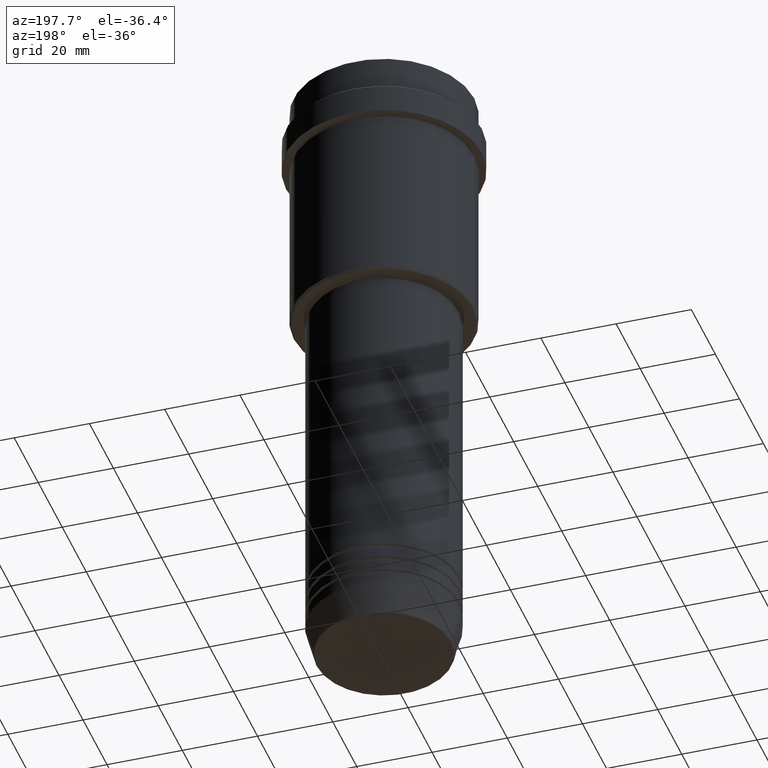
[diagram: clean part render]
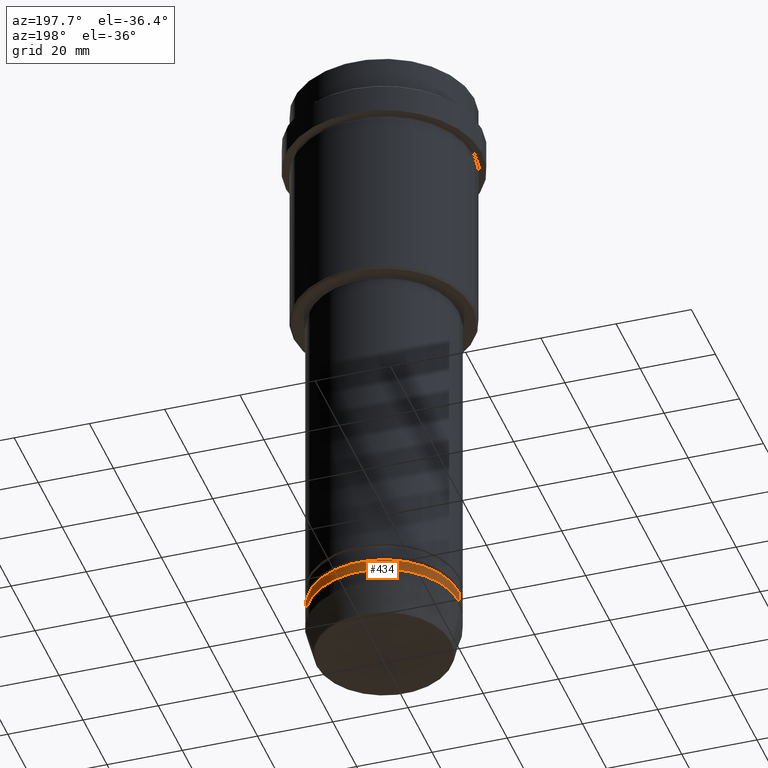
[diagram: same view with one face highlighted and labeled with its STEP entity id]
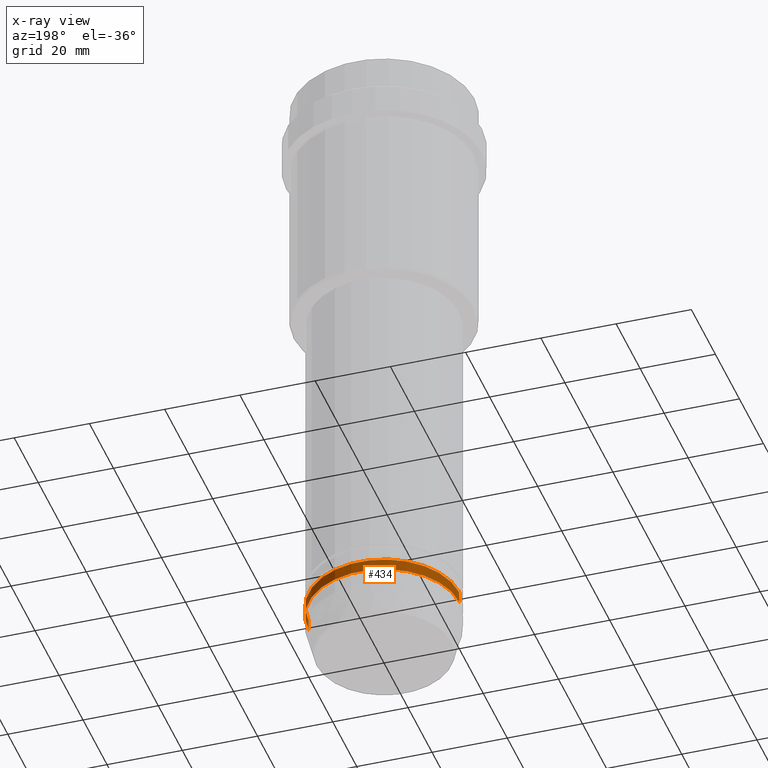
[diagram: x-ray of the same camera — body ghosted, the highlighted face saturated]
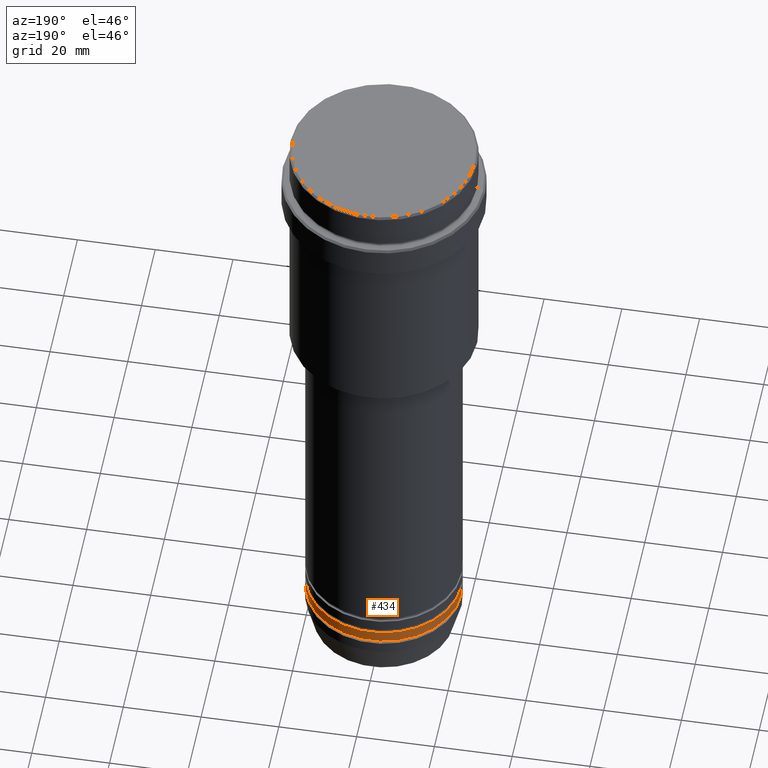
[diagram: same view with one face highlighted and labeled with its STEP entity id]
A machine part, auxiliary view. The second image highlights one B-rep face of the part: STEP entity #434.
The next image is the same camera in x-ray: the body ghosted, the highlighted face saturated — about 0% of this face is hidden behind the body in this view.
A second angle (auxiliary view) of the same face is appended — the face is thin or edge-on in the first view.
In plain terms, the highlighted cylindrical surface (partial cylindrical patch) has radius 20 mm, axis along (-0, -0, 1).
Its self-contained STEP definition (entity closure, byte-faithful):
#36 = CARTESIAN_POINT ( 'NONE',  ( 20.00000000000000000, 0.000000000000000000, -154.9999999999998863 ) ) ;
#71 = DIRECTION ( 'NONE',  ( -0.000000000000000000, -0.000000000000000000, 1.000000000000000000 ) ) ;
#169 = DIRECTION ( 'NONE',  ( 1.000000000000000000, 0.000000000000000000, 0.000000000000000000 ) ) ;
#211 = CARTESIAN_POINT ( 'NONE',  ( 20.00000000000000000, 0.000000000000000000, -157.9999999999998863 ) ) ;
#252 = CARTESIAN_POINT ( 'NONE',  ( 0.000000000000000000, 0.000000000000000000, -157.9999999999998863 ) ) ;
#375 = VERTEX_POINT ( 'NONE', #36 ) ;
#402 = EDGE_LOOP ( 'NONE', ( #940, #529, #1068, #763 ) ) ;
#434 = ADVANCED_FACE ( 'NONE', ( #1163 ), #599, .T. ) ;
#441 = CARTESIAN_POINT ( 'NONE',  ( -20.00000000000000000, 2.449293598294706513E-15, -154.9999999999998863 ) ) ;
#529 = ORIENTED_EDGE ( 'NONE', *, *, #584, .T. ) ;
#584 = EDGE_CURVE ( 'NONE', #696, #814, #1318, .T. ) ;
#591 = DIRECTION ( 'NONE',  ( -0.000000000000000000, -0.000000000000000000, 1.000000000000000000 ) ) ;
#593 = CIRCLE ( 'NONE', #850, 20.00000000000000000 ) ;
#599 = CYLINDRICAL_SURFACE ( 'NONE', #683, 20.00000000000000000 ) ;
#636 = AXIS2_PLACEMENT_3D ( 'NONE', #252, #71, #169 ) ;
#683 = AXIS2_PLACEMENT_3D ( 'NONE', #823, #591, #1259 ) ;
#696 = VERTEX_POINT ( 'NONE', #1405 ) ;
#746 = CARTESIAN_POINT ( 'NONE',  ( 0.000000000000000000, 0.000000000000000000, -154.9999999999998863 ) ) ;
#763 = ORIENTED_EDGE ( 'NONE', *, *, #1379, .F. ) ;
#814 = VERTEX_POINT ( 'NONE', #441 ) ;
#823 = CARTESIAN_POINT ( 'NONE',  ( 0.000000000000000000, 0.000000000000000000, 0.000000000000000000 ) ) ;
#850 = AXIS2_PLACEMENT_3D ( 'NONE', #746, #976, #1300 ) ;
#851 = DIRECTION ( 'NONE',  ( -0.000000000000000000, -0.000000000000000000, 1.000000000000000000 ) ) ;
#940 = ORIENTED_EDGE ( 'NONE', *, *, #1183, .T. ) ;
#976 = DIRECTION ( 'NONE',  ( -0.000000000000000000, -0.000000000000000000, 1.000000000000000000 ) ) ;
#979 = CARTESIAN_POINT ( 'NONE',  ( 20.00000000000000000, 0.000000000000000000, 0.000000000000000000 ) ) ;
#1056 = EDGE_CURVE ( 'NONE', #375, #814, #593, .T. ) ;
#1068 = ORIENTED_EDGE ( 'NONE', *, *, #1056, .F. ) ;
#1073 = VERTEX_POINT ( 'NONE', #211 ) ;
#1163 = FACE_OUTER_BOUND ( 'NONE', #402, .T. ) ;
#1169 = CIRCLE ( 'NONE', #636, 20.00000000000000000 ) ;
#1183 = EDGE_CURVE ( 'NONE', #1073, #696, #1169, .T. ) ;
#1259 = DIRECTION ( 'NONE',  ( 1.000000000000000000, 0.000000000000000000, 0.000000000000000000 ) ) ;
#1287 = VECTOR ( 'NONE', #851, 1000.000000000000000 ) ;
#1300 = DIRECTION ( 'NONE',  ( 1.000000000000000000, 0.000000000000000000, 0.000000000000000000 ) ) ;
#1306 = DIRECTION ( 'NONE',  ( -0.000000000000000000, -0.000000000000000000, 1.000000000000000000 ) ) ;
#1316 = LINE ( 'NONE', #979, #1287 ) ;
#1318 = LINE ( 'NONE', #1396, #1385 ) ;
#1379 = EDGE_CURVE ( 'NONE', #1073, #375, #1316, .T. ) ;
#1385 = VECTOR ( 'NONE', #1306, 1000.000000000000000 ) ;
#1396 = CARTESIAN_POINT ( 'NONE',  ( -20.00000000000000000, 2.449293598294706513E-15, 0.000000000000000000 ) ) ;
#1405 = CARTESIAN_POINT ( 'NONE',  ( -20.00000000000000000, 2.449293598294706513E-15, -157.9999999999998863 ) ) ;